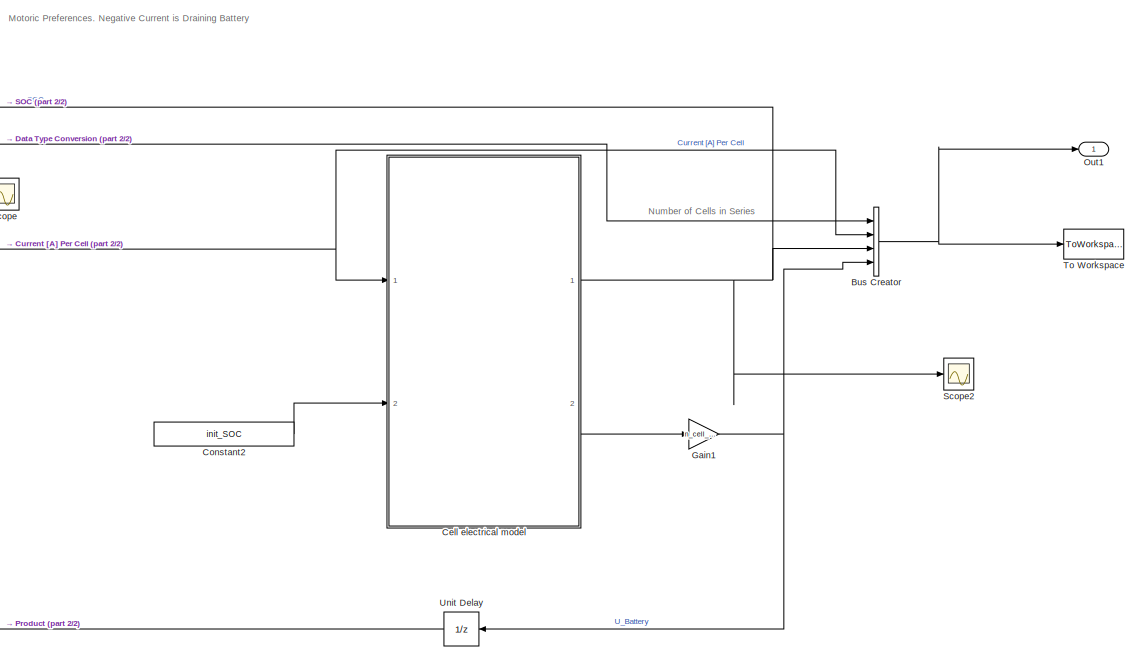
[diagram: root canvas - part 1/2, right side, full height]
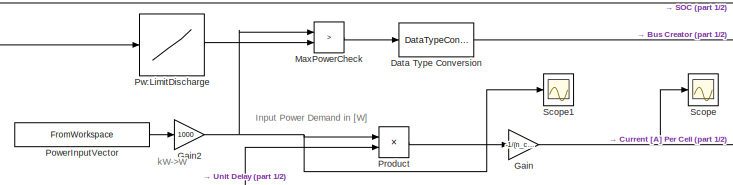
[diagram: root canvas - part 2/2, top left region]
MODEL slx_77cff35056c7
KIND model
CONFIG AbsTol = auto
CONFIG FixedStep = 0.2
CONFIG MaxStep = auto
CONFIG MinStep = auto
CONFIG RelTol = 1e-3
CONFIG SampleTimeConstraint = Unconstrained
CONFIG Solver = ode5
CONFIG SolverMode = Auto
CONFIG SolverName = ode5
CONFIG StartTime = 0.0
CONFIG StopTime = PowerInputVector(end,1)
BLOCK [BusCreator] Bus Creator
  DisplayOption = bar
  Ports = [4, 1]
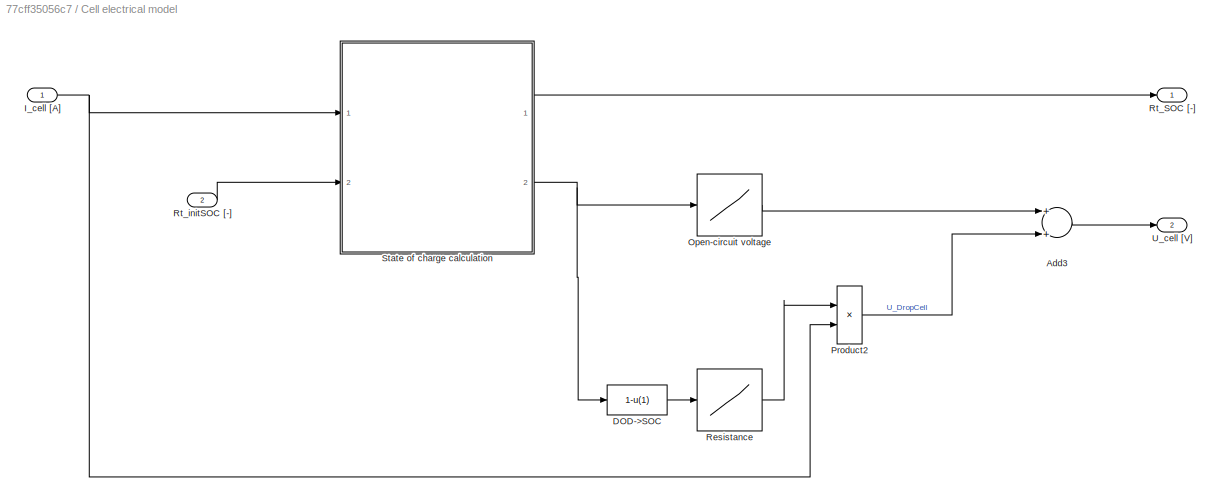
BLOCK [SubSystem] Cell electrical model
  AncestorBlock = batteryScalable_v1/Cell electrical model
  Ports = [2, 2]
  RequestExecContextInheritance = off
BLOCK [Sum] Cell electrical model/Add3
  InputSameDT = off
  OutDataTypeStr = Inherit: Inherit via internal rule
  Ports = [2, 1]
  SaturateOnIntegerOverflow = off
BLOCK [Fcn] Cell electrical model/DOD->SOC
  Expr = 1-u(1)
BLOCK [Inport] Cell electrical model/I_cell [A]
  IconDisplay = Port number
BLOCK [Lookup] Cell electrical model/Open-circuit voltage
  InputValues = bat.cell.Rt_DOD_x
  LookUpMeth = Interpolation-Use End Values
  SaturateOnIntegerOverflow = off
  Table = bat.cell.U_OCV_y
BLOCK [Product] Cell electrical model/Product2
  InputSameDT = off
  Inputs = **
  OutDataTypeStr = Inherit: Inherit via internal rule
  Ports = [2, 1]
  SaturateOnIntegerOverflow = off
BLOCK [Lookup] Cell electrical model/Resistance
  InputValues = linspace(0,1,7)
  SaturateOnIntegerOverflow = off
  Table = bat.cell.R_0_z(:,1)
BLOCK [Outport] Cell electrical model/Rt_SOC [-]
  IconDisplay = Port number
BLOCK [Inport] Cell electrical model/Rt_initSOC [-]
  IconDisplay = Port number
  Port = 2
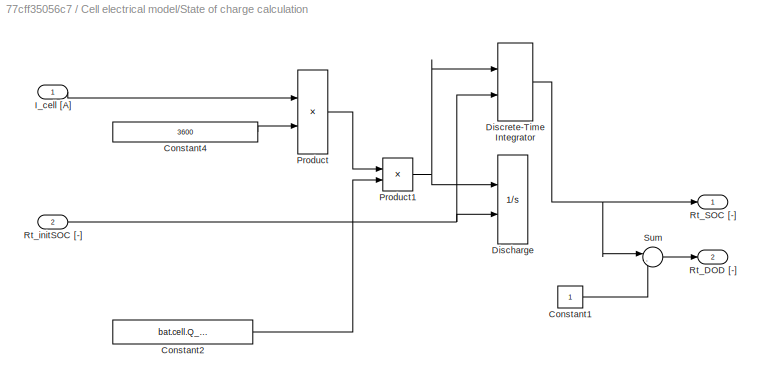
BLOCK [SubSystem] Cell electrical model/State of charge calculation
  Ports = [2, 2]
  RequestExecContextInheritance = off
BLOCK [Constant] Cell electrical model/State of charge calculation/Constant1
BLOCK [Constant] Cell electrical model/State of charge calculation/Constant2
  Value = bat.cell.Q_reference_ideal(7,1)
BLOCK [Constant] Cell electrical model/State of charge calculation/Constant4
  Value = 3600
BLOCK [Integrator] Cell electrical model/State of charge calculation/Discharge
  InitialCondition = bat.Rt_initialSOC
  InitialConditionSource = external
  LimitOutput = on
  LowerSaturationLimit = 0
  Ports = [2, 1]
  UpperSaturationLimit = 1
BLOCK [DiscreteIntegrator] Cell electrical model/State of charge calculation/Discrete-Time Integrator
  InitialConditionSetting = State (most efficient)
  InitialConditionSource = external
  Ports = [2, 1]
  SampleTime = 0.2
BLOCK [Inport] Cell electrical model/State of charge calculation/I_cell [A]
  IconDisplay = Port number
BLOCK [Product] Cell electrical model/State of charge calculation/Product
  InputSameDT = off
  Inputs = */
  OutDataTypeStr = Inherit: Inherit via internal rule
  OutMax = 500
  OutMin = -500
  Ports = [2, 1]
  SaturateOnIntegerOverflow = off
BLOCK [Product] Cell electrical model/State of charge calculation/Product1
  InputSameDT = off
  Inputs = */
  OutDataTypeStr = Inherit: Inherit via internal rule
  Ports = [2, 1]
  SaturateOnIntegerOverflow = off
BLOCK [Outport] Cell electrical model/State of charge calculation/Rt_DOD [-]
  IconDisplay = Port number
  Port = 2
BLOCK [Outport] Cell electrical model/State of charge calculation/Rt_SOC [-]
  IconDisplay = Port number
BLOCK [Inport] Cell electrical model/State of charge calculation/Rt_initSOC [-]
  IconDisplay = Port number
  Port = 2
BLOCK [Sum] Cell electrical model/State of charge calculation/Sum
  IconShape = round
  InputSameDT = off
  Inputs = |-+
  OutDataTypeStr = Inherit: Inherit via internal rule
  Ports = [2, 1]
  SaturateOnIntegerOverflow = off
BLOCK [Outport] Cell electrical model/U_cell [V]
  IconDisplay = Port number
  Port = 2
BLOCK [Constant] Constant2
  Value = init_SOC
BLOCK [DataTypeConversion] Data Type Conversion
  OutDataTypeStr = double
  RndMeth = Floor
  SaturateOnIntegerOverflow = off
BLOCK [Gain] Gain
  Gain = -1/(n_cell_parallel)
  Multiplication = Matrix(K*u)
  OutDataTypeStr = Inherit: Inherit via internal rule
  ParamDataTypeStr = Inherit: Inherit via internal rule
  SaturateOnIntegerOverflow = off
BLOCK [Gain] Gain1
  Gain = n_cell_series
  OutDataTypeStr = Inherit: Inherit via internal rule
  ParamDataTypeStr = Inherit: Inherit via internal rule
  SaturateOnIntegerOverflow = off
BLOCK [Gain] Gain2
  Gain = 1000
  Multiplication = Matrix(K*u)
  OutDataTypeStr = Inherit: Inherit via internal rule
  ParamDataTypeStr = Inherit: Inherit via internal rule
  SaturateOnIntegerOverflow = off
BLOCK [RelationalOperator] MaxPowerCheck
  InputSameDT = off
  Operator = >
  OutDataTypeStr = boolean
  Ports = [2, 1]
BLOCK [Outport] Out1
  IconDisplay = Port number
BLOCK [FromWorkspace] PowerInputVector
  VariableName = PowerInputVector
  ZeroCross = on
BLOCK [Product] Product
  InputSameDT = off
  Inputs = */
  OutDataTypeStr = Inherit: Inherit via internal rule
  Ports = [2, 1]
  SaturateOnIntegerOverflow = off
BLOCK [Lookup] Pw:LimitDischarge
  InputValues = becm.Rt_SOC_x
  LookUpMeth = Interpolation-Use End Values
  SaturateOnIntegerOverflow = off
  Table = becm.Pw_limitDischarge_z *1000
BLOCK [Scope] Scope
  Floating = off
  LimitDataPoints = off
  NumInputPorts = 1
  Ports = [1]
BLOCK [Scope] Scope1
  Floating = off
  LimitDataPoints = off
  NumInputPorts = 1
  Ports = [1]
  SaveName = ScopeData1
BLOCK [Scope] Scope2
  Floating = off
  LimitDataPoints = off
  NumInputPorts = 1
  Ports = [1]
  SaveName = ScopeData2
BLOCK [ToWorkspace] To Workspace
  FixptAsFi = on
  MaxDataPoints = inf
  Ports = [1]
  SampleTime = -1
  SaveFormat = Structure With Time
  VariableName = SIMOUT
BLOCK [UnitDelay] Unit Delay
  InitialCondition = mean(bat.cell.U_OCV_y)*n_cell_series
  InputProcessing = Elements as channels (sample based)
  SampleTime = -1
ANNOTATION (root): Input Power Demand in [W]
ANNOTATION (root): Motoric Preferences. Negative Current is Draining Battery
ANNOTATION (root): Number of Cells in Series
ANNOTATION (root): kW->W
NET Bus Creator:1 -> Out1:1, To Workspace:1
NET Cell electrical model:1 -> Bus Creator:3, Pw:LimitDischarge:1, Scope2:1
LINE Cell electrical model:2 -> Gain1:1
LINE Constant2:1 -> Cell electrical model:2
LINE Data Type Conversion:1 -> Bus Creator:1
NET Gain1:1 -> Bus Creator:4, Unit Delay:1
NET Gain2:1 -> MaxPowerCheck:1, Product:1, Scope1:1
NET Gain:1 -> Bus Creator:2, Cell electrical model:1, Scope:1
LINE MaxPowerCheck:1 -> Data Type Conversion:1
LINE PowerInputVector:1 -> Gain2:1
LINE Product:1 -> Gain:1
LINE Pw:LimitDischarge:1 -> MaxPowerCheck:2
LINE Unit Delay:1 -> Product:2
note: NET lines group one-source signal fan-out (src -> all destinations, sorted); 1:1 wires keep LINE
